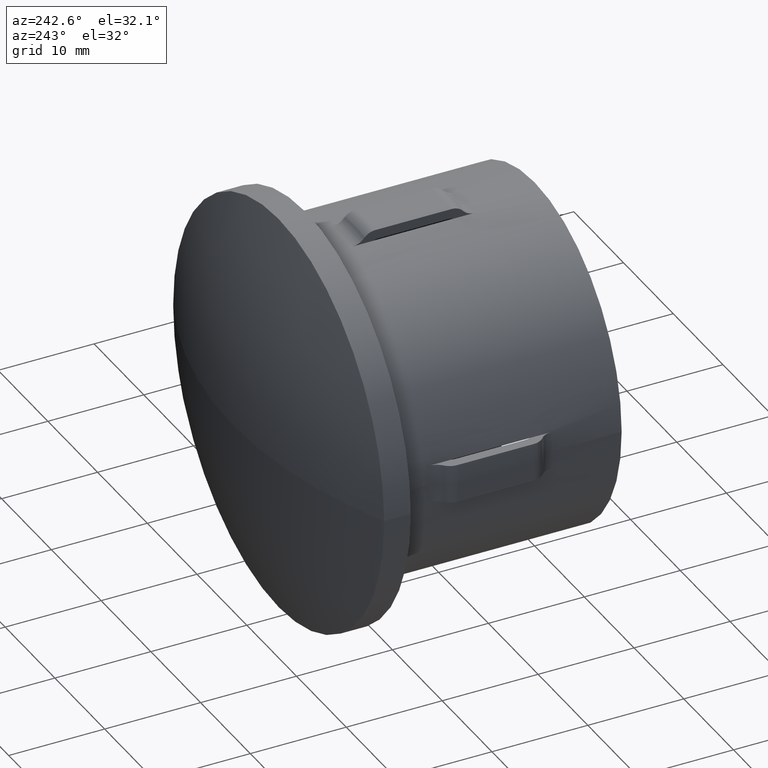
[diagram: clean part render]
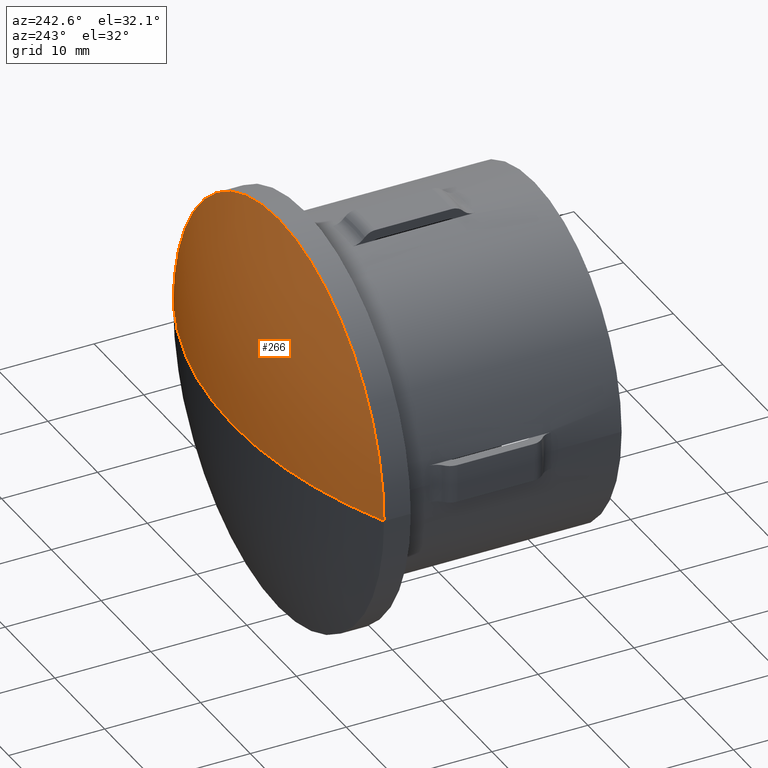
[diagram: same view with one face highlighted and labeled with its STEP entity id]
A machine part, auxiliary view. The second image highlights one B-rep face of the part: STEP entity #266.
In plain terms, the highlighted spherical surface has radius 50 mm.
Its self-contained STEP definition (entity closure, byte-faithful):
#172 = AXIS2_PLACEMENT_3D ( 'NONE', #12652, #6109, #6162 ) ;
#266 = ADVANCED_FACE ( 'NONE', ( #13215 ), #8965, .T. ) ;
#465 = CIRCLE ( 'NONE', #1034, 21.20000000000001000 ) ;
#543 = CARTESIAN_POINT ( 'NONE',  ( -4.200538521075421400E-015, -18.60000000000000500, 0.0000000000000000000 ) ) ;
#587 = DIRECTION ( 'NONE',  ( -0.0000000000000000000, 0.0000000000000000000, 1.000000000000000000 ) ) ;
#768 = CARTESIAN_POINT ( 'NONE',  ( -6.439761623881060800E-015, 26.68310943387175600, 0.0000000000000000000 ) ) ;
#1006 = DIRECTION ( 'NONE',  ( 1.224646799147353200E-016, -3.557430204473923300E-031, 1.000000000000000000 ) ) ;
#1034 = AXIS2_PLACEMENT_3D ( 'NONE', #768, #3818, #2719 ) ;
#1087 = DIRECTION ( 'NONE',  ( 1.000000000000000000, 0.0000000000000000000, -1.224646799147353200E-016 ) ) ;
#1333 = VERTEX_POINT ( 'NONE', #9168 ) ;
#2237 = CARTESIAN_POINT ( 'NONE',  ( -4.200538521075421400E-015, -18.60000000000000500, 0.0000000000000000000 ) ) ;
#2456 = EDGE_CURVE ( 'NONE', #13017, #7749, #10823, .T. ) ;
#2719 = DIRECTION ( 'NONE',  ( 1.000000000000000000, -2.945756845998350200E-015, 0.0000000000000000000 ) ) ;
#2806 = CARTESIAN_POINT ( 'NONE',  ( 1.441041888556689300E-013, 31.39999999999999900, 0.0000000000000000000 ) ) ;
#2890 = ORIENTED_EDGE ( 'NONE', *, *, #7843, .F. ) ;
#3818 = DIRECTION ( 'NONE',  ( -2.904862207577519400E-015, -1.000000000000000000, -0.0000000000000000000 ) ) ;
#4660 = EDGE_CURVE ( 'NONE', #13017, #1333, #8084, .T. ) ;
#6109 = DIRECTION ( 'NONE',  ( 0.0000000000000000000, 0.0000000000000000000, -1.000000000000000000 ) ) ;
#6162 = DIRECTION ( 'NONE',  ( -1.000000000000000000, 0.0000000000000000000, 0.0000000000000000000 ) ) ;
#6596 = ORIENTED_EDGE ( 'NONE', *, *, #4660, .T. ) ;
#7749 = VERTEX_POINT ( 'NONE', #13007 ) ;
#7843 = EDGE_CURVE ( 'NONE', #7749, #1333, #465, .T. ) ;
#8084 = CIRCLE ( 'NONE', #13495, 50.00000000000000000 ) ;
#8929 = EDGE_LOOP ( 'NONE', ( #10745, #6596, #2890 ) ) ;
#8932 = AXIS2_PLACEMENT_3D ( 'NONE', #543, #587, #9651 ) ;
#8965 = SPHERICAL_SURFACE ( 'NONE', #8932, 50.00000000000000000 ) ;
#9168 = CARTESIAN_POINT ( 'NONE',  ( -21.19999999999988600, 26.68310943387181300, 2.596251214192390300E-015 ) ) ;
#9651 = DIRECTION ( 'NONE',  ( 1.000000000000000000, -2.914335439641035900E-015, 0.0000000000000000000 ) ) ;
#10745 = ORIENTED_EDGE ( 'NONE', *, *, #2456, .F. ) ;
#10823 = CIRCLE ( 'NONE', #172, 50.00000000000000000 ) ;
#12652 = CARTESIAN_POINT ( 'NONE',  ( -4.200538521075421400E-015, -18.60000000000000500, 0.0000000000000000000 ) ) ;
#13007 = CARTESIAN_POINT ( 'NONE',  ( 21.20000000000000300, 26.68310943387169200, 0.0000000000000000000 ) ) ;
#13017 = VERTEX_POINT ( 'NONE', #2806 ) ;
#13215 = FACE_OUTER_BOUND ( 'NONE', #8929, .T. ) ;
#13495 = AXIS2_PLACEMENT_3D ( 'NONE', #2237, #1006, #1087 ) ;